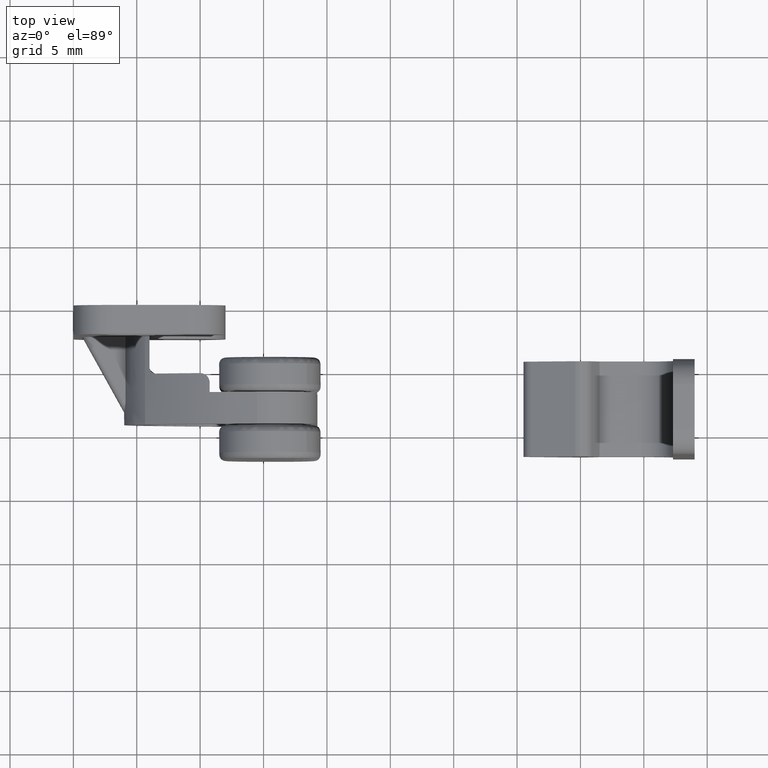
[diagram: clean part render]
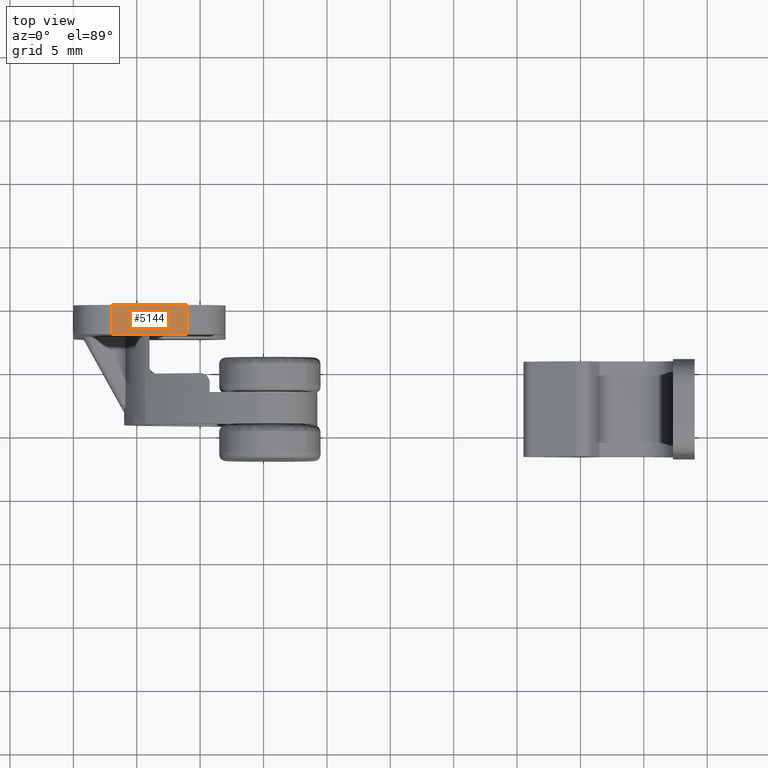
[diagram: same view with one face highlighted and labeled with its STEP entity id]
A machine part, top view. The second image highlights one B-rep face of the part: STEP entity #5144.
In plain terms, the highlighted face is a freeform B-spline surface patch.
Its self-contained STEP definition (entity closure, byte-faithful):
#4641=CARTESIAN_POINT('',(9.000000000000100,0.0,13.750000000000000));
#4642=VERTEX_POINT('',#4641);
#4657=CARTESIAN_POINT('',(9.000000000000100,-2.299999999999970,13.750000000000000));
#4658=VERTEX_POINT('',#4657);
#4659=CARTESIAN_POINT('',(9.000000000000100,-2.299999999999970,13.750000000000000));
#4660=CARTESIAN_POINT('',(9.000000000000100,0.0,13.750000000000000));
#4661=QUASI_UNIFORM_CURVE('',1,(#4659,#4660),.UNSPECIFIED.,.F.,.U.);
#4662=EDGE_CURVE('',#4658,#4642,#4661,.T.);
#5084=CARTESIAN_POINT('',(3.0,0.0,13.750000000000000));
#5085=VERTEX_POINT('',#5084);
#5101=CARTESIAN_POINT('',(3.0,-2.299999999999970,13.750000000000000));
#5102=VERTEX_POINT('',#5101);
#5117=CARTESIAN_POINT('',(3.0,-2.299999999999970,13.750000000000000));
#5118=CARTESIAN_POINT('',(3.0,0.0,13.750000000000000));
#5119=QUASI_UNIFORM_CURVE('',1,(#5117,#5118),.UNSPECIFIED.,.F.,.U.);
#5120=EDGE_CURVE('',#5102,#5085,#5119,.T.);
#5125=CARTESIAN_POINT('',(9.299699988370939,-2.414884952360614,13.750000000000000));
#5126=CARTESIAN_POINT('',(2.700299850696618,-2.414884952360614,13.750000000000000));
#5127=CARTESIAN_POINT('',(9.299699988370939,0.114885055178656,13.750000000000000));
#5128=CARTESIAN_POINT('',(2.700299850696618,0.114885055178656,13.750000000000000));
#5129=B_SPLINE_SURFACE_WITH_KNOTS('',1,1,((#5125,#5127),(#5126,#5128)),.UNSPECIFIED.,.F.,.F.,.U.,(2,2),(2,2),(0.0,6.599400137674321),(0.0,2.529770007539269),.UNSPECIFIED.);
#5130=CARTESIAN_POINT('',(9.000000000000100,0.0,13.750000000000000));
#5131=CARTESIAN_POINT('',(3.0,0.0,13.750000000000000));
#5132=QUASI_UNIFORM_CURVE('',1,(#5130,#5131),.UNSPECIFIED.,.F.,.U.);
#5133=EDGE_CURVE('',#4642,#5085,#5132,.T.);
#5134=ORIENTED_EDGE('',*,*,#5133,.T.);
#5135=ORIENTED_EDGE('',*,*,#5120,.F.);
#5136=CARTESIAN_POINT('',(9.000000000000100,-2.299999999999970,13.750000000000000));
#5137=CARTESIAN_POINT('',(3.0,-2.299999999999970,13.750000000000000));
#5138=QUASI_UNIFORM_CURVE('',1,(#5136,#5137),.UNSPECIFIED.,.F.,.U.);
#5139=EDGE_CURVE('',#4658,#5102,#5138,.T.);
#5140=ORIENTED_EDGE('',*,*,#5139,.F.);
#5141=ORIENTED_EDGE('',*,*,#4662,.T.);
#5142=EDGE_LOOP('',(#5134,#5135,#5140,#5141));
#5143=FACE_OUTER_BOUND('',#5142,.T.);
#5144=ADVANCED_FACE('',(#5143),#5129,.F.);